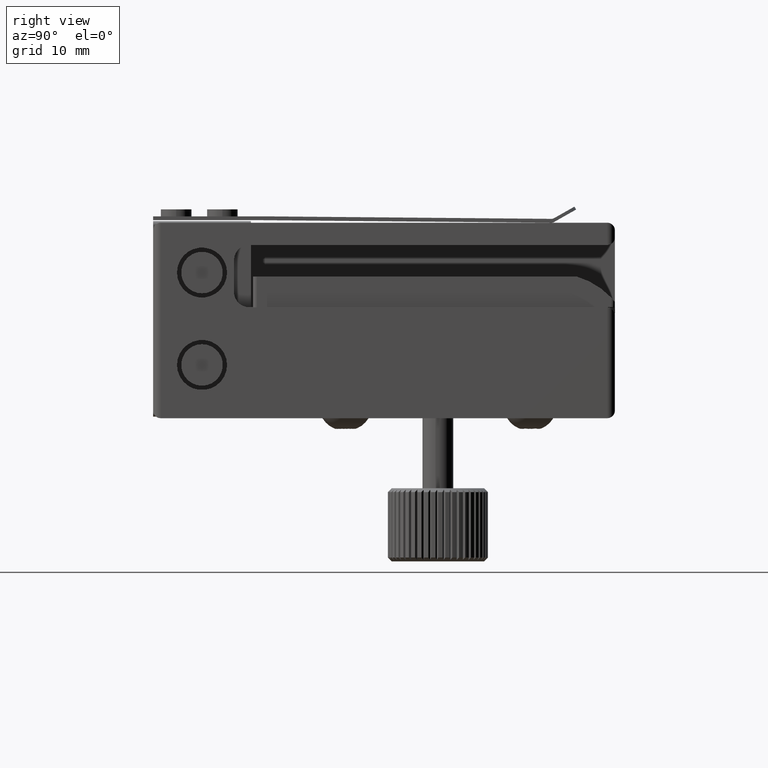
[diagram: clean part render]
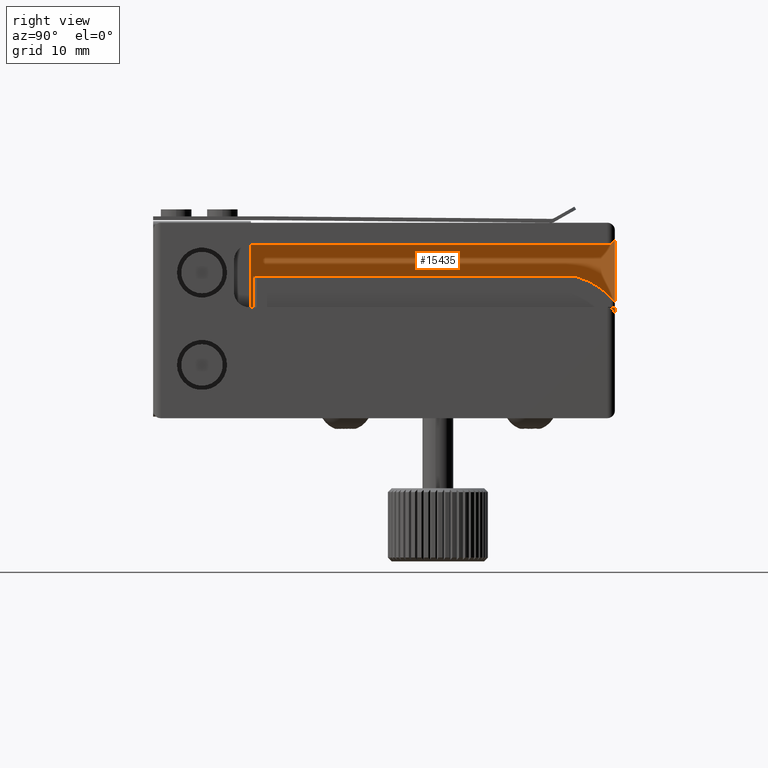
[diagram: same view with one face highlighted and labeled with its STEP entity id]
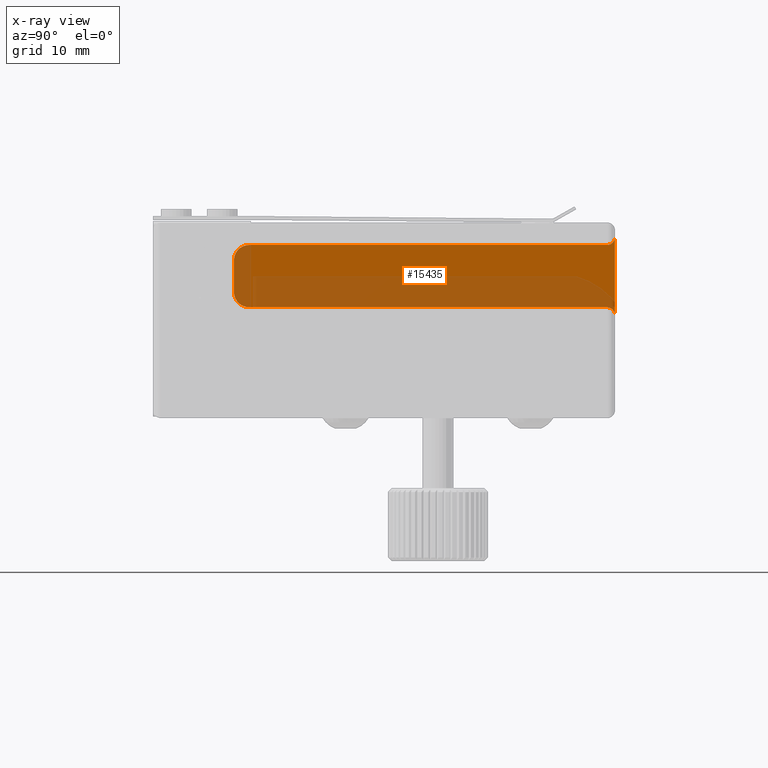
[diagram: x-ray of the same camera — body ghosted, the highlighted face saturated]
A machine part, right view. The second image highlights one B-rep face of the part: STEP entity #15435.
The next image is the same camera in x-ray: the body ghosted, the highlighted face saturated — about 49% of this face is hidden behind the body in this view.
In plain terms, the highlighted planar face has unit normal (-1, 0, 0).
Its self-contained STEP definition (entity closure, byte-faithful):
#89 = CIRCLE ( 'NONE', #15786, 2.000000000000000000 ) ;
#99 = CIRCLE ( 'NONE', #584, 1.000000000000000900 ) ;
#107 = LINE ( 'NONE', #11771, #109 ) ;
#109 = VECTOR ( 'NONE', #11772, 1000.000000000000000 ) ;
#124 = CIRCLE ( 'NONE', #591, 1.000000000000000900 ) ;
#137 = LINE ( 'NONE', #11830, #140 ) ;
#140 = VECTOR ( 'NONE', #11831, 1000.000000000000000 ) ;
#584 = AXIS2_PLACEMENT_3D ( 'NONE', #11781, #11782, #11783 ) ;
#591 = AXIS2_PLACEMENT_3D ( 'NONE', #11835, #11836, #11837 ) ;
#759 = AXIS2_PLACEMENT_3D ( 'NONE', #4817, #4818, #4819 ) ;
#2780 = CARTESIAN_POINT ( 'NONE',  ( -33.13249027237353800, 51.16333045107364100, 10.59999999999999800 ) ) ;
#2785 = CARTESIAN_POINT ( 'NONE',  ( -33.13249027237353800, 50.16333045107364100, 1.499999999999997600 ) ) ;
#2786 = CARTESIAN_POINT ( 'NONE',  ( -33.13249027237353800, 50.16333045107364100, 9.599999999999997900 ) ) ;
#2788 = CARTESIAN_POINT ( 'NONE',  ( -33.13249027237353800, 51.16333045107364100, 0.4999999999999970000 ) ) ;
#2802 = CARTESIAN_POINT ( 'NONE',  ( -33.13249027237353800, 1.663330451073641300, 7.599999999999992500 ) ) ;
#2806 = CARTESIAN_POINT ( 'NONE',  ( -33.13249027237353800, 3.663330451073643100, 9.599999999999992500 ) ) ;
#2823 = CARTESIAN_POINT ( 'NONE',  ( -33.13249027237353800, 3.663330451073643100, 1.499999999999992000 ) ) ;
#2825 = CARTESIAN_POINT ( 'NONE',  ( -33.13249027237353800, 1.663330451073641300, 3.499999999999992900 ) ) ;
#4817 = CARTESIAN_POINT ( 'NONE',  ( -33.13249027237353800, 3.663330451073639500, 7.599999999999992500 ) ) ;
#4818 = DIRECTION ( 'NONE',  ( 1.000000000000000000, -0.0000000000000000000, -0.0000000000000000000 ) ) ;
#4819 = DIRECTION ( 'NONE',  ( 0.0000000000000000000, -1.000000000000000000, 0.0000000000000000000 ) ) ;
#4974 = CIRCLE ( 'NONE', #759, 2.000000000000000000 ) ;
#5183 = LINE ( 'NONE', #6466, #5186 ) ;
#5186 = VECTOR ( 'NONE', #6467, 1000.000000000000000 ) ;
#5217 = LINE ( 'NONE', #6531, #5219 ) ;
#5219 = VECTOR ( 'NONE', #6532, 1000.000000000000000 ) ;
#5760 = FACE_OUTER_BOUND ( 'NONE', #12838, .T. ) ;
#6466 = CARTESIAN_POINT ( 'NONE',  ( -33.13249027237353800, 1.663330451073641300, 9.599999999999992500 ) ) ;
#6467 = DIRECTION ( 'NONE',  ( 0.0000000000000000000, 0.0000000000000000000, -1.000000000000000000 ) ) ;
#6531 = CARTESIAN_POINT ( 'NONE',  ( -33.13249027237353800, 51.16333045107364100, 9.599999999999997900 ) ) ;
#6532 = DIRECTION ( 'NONE',  ( 0.0000000000000000000, -1.000000000000000000, -1.051347561198064800E-016 ) ) ;
#8037 = CARTESIAN_POINT ( 'NONE',  ( -33.13249027237353800, 21.16333045107362700, -0.2000000000000092000 ) ) ;
#8045 = PLANE ( 'NONE',  #8418 ) ;
#8047 = DIRECTION ( 'NONE',  ( -1.000000000000000000, 0.0000000000000000000, 0.0000000000000000000 ) ) ;
#8048 = DIRECTION ( 'NONE',  ( 0.0000000000000000000, -1.000000000000000000, 0.0000000000000000000 ) ) ;
#8418 = AXIS2_PLACEMENT_3D ( 'NONE', #8037, #8047, #8048 ) ;
#11749 = CARTESIAN_POINT ( 'NONE',  ( -33.13249027237353800, 3.663330451073643100, 3.499999999999992500 ) ) ;
#11750 = DIRECTION ( 'NONE',  ( 1.000000000000000000, -0.0000000000000000000, -0.0000000000000000000 ) ) ;
#11751 = DIRECTION ( 'NONE',  ( 0.0000000000000000000, -1.000000000000000000, 0.0000000000000000000 ) ) ;
#11771 = CARTESIAN_POINT ( 'NONE',  ( -33.13249027237353800, 51.16333045107364100, 1.499999999999997800 ) ) ;
#11772 = DIRECTION ( 'NONE',  ( 0.0000000000000000000, 1.000000000000000000, 1.226572154731075600E-016 ) ) ;
#11781 = CARTESIAN_POINT ( 'NONE',  ( -33.13249027237353800, 50.16333045107364100, 0.4999999999999970000 ) ) ;
#11782 = DIRECTION ( 'NONE',  ( -1.000000000000000000, 0.0000000000000000000, 0.0000000000000000000 ) ) ;
#11783 = DIRECTION ( 'NONE',  ( 0.0000000000000000000, -1.000000000000000000, 0.0000000000000000000 ) ) ;
#11830 = CARTESIAN_POINT ( 'NONE',  ( -33.13249027237353800, 51.16333045107364100, 9.599999999999997900 ) ) ;
#11831 = DIRECTION ( 'NONE',  ( 0.0000000000000000000, 0.0000000000000000000, 1.000000000000000000 ) ) ;
#11835 = CARTESIAN_POINT ( 'NONE',  ( -33.13249027237353800, 50.16333045107364100, 10.59999999999999800 ) ) ;
#11836 = DIRECTION ( 'NONE',  ( -1.000000000000000000, 0.0000000000000000000, 0.0000000000000000000 ) ) ;
#11837 = DIRECTION ( 'NONE',  ( 0.0000000000000000000, -1.000000000000000000, 0.0000000000000000000 ) ) ;
#11969 = EDGE_CURVE ( 'NONE', #13340, #13338, #89, .T. ) ;
#11978 = EDGE_CURVE ( 'NONE', #13338, #13300, #107, .T. ) ;
#11981 = EDGE_CURVE ( 'NONE', #13300, #13303, #99, .T. ) ;
#12001 = EDGE_CURVE ( 'NONE', #13303, #13295, #137, .T. ) ;
#12003 = EDGE_CURVE ( 'NONE', #13295, #13301, #124, .T. ) ;
#12838 = EDGE_LOOP ( 'NONE', ( #16287, #16288, #16289, #16290, #16291, #16292, #16293, #16294 ) ) ;
#13295 = VERTEX_POINT ( 'NONE', #2780 ) ;
#13300 = VERTEX_POINT ( 'NONE', #2785 ) ;
#13301 = VERTEX_POINT ( 'NONE', #2786 ) ;
#13303 = VERTEX_POINT ( 'NONE', #2788 ) ;
#13317 = VERTEX_POINT ( 'NONE', #2802 ) ;
#13321 = VERTEX_POINT ( 'NONE', #2806 ) ;
#13338 = VERTEX_POINT ( 'NONE', #2823 ) ;
#13340 = VERTEX_POINT ( 'NONE', #2825 ) ;
#14836 = EDGE_CURVE ( 'NONE', #13321, #13317, #4974, .T. ) ;
#15053 = EDGE_CURVE ( 'NONE', #13317, #13340, #5183, .T. ) ;
#15077 = EDGE_CURVE ( 'NONE', #13301, #13321, #5217, .T. ) ;
#15435 = ADVANCED_FACE ( 'NONE', ( #5760 ), #8045, .F. ) ;
#15786 = AXIS2_PLACEMENT_3D ( 'NONE', #11749, #11750, #11751 ) ;
#16287 = ORIENTED_EDGE ( 'NONE', *, *, #15053, .T. ) ;
#16288 = ORIENTED_EDGE ( 'NONE', *, *, #11969, .T. ) ;
#16289 = ORIENTED_EDGE ( 'NONE', *, *, #11978, .T. ) ;
#16290 = ORIENTED_EDGE ( 'NONE', *, *, #11981, .T. ) ;
#16291 = ORIENTED_EDGE ( 'NONE', *, *, #12001, .T. ) ;
#16292 = ORIENTED_EDGE ( 'NONE', *, *, #12003, .T. ) ;
#16293 = ORIENTED_EDGE ( 'NONE', *, *, #15077, .T. ) ;
#16294 = ORIENTED_EDGE ( 'NONE', *, *, #14836, .T. ) ;